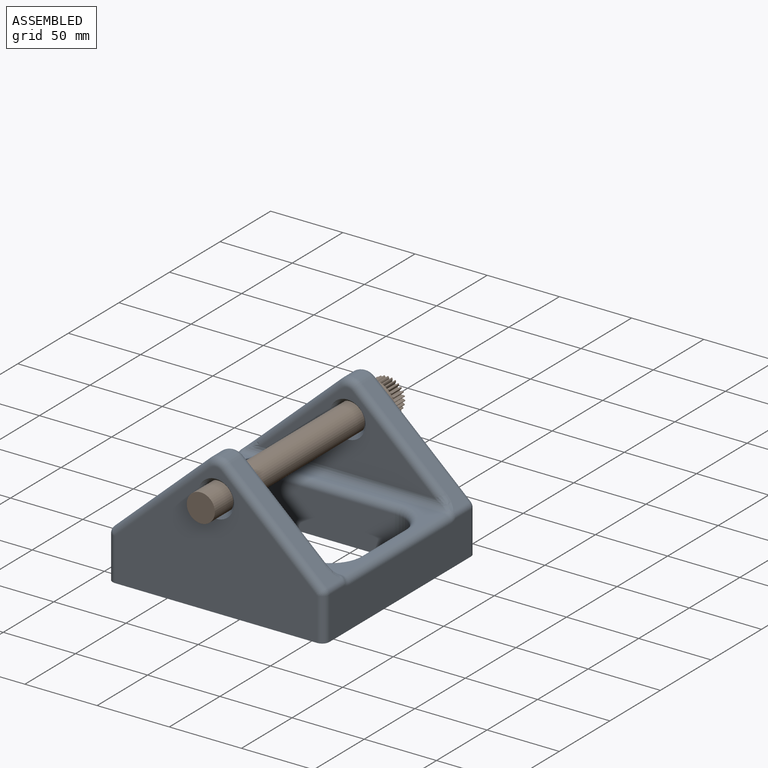
[diagram: assembled view]
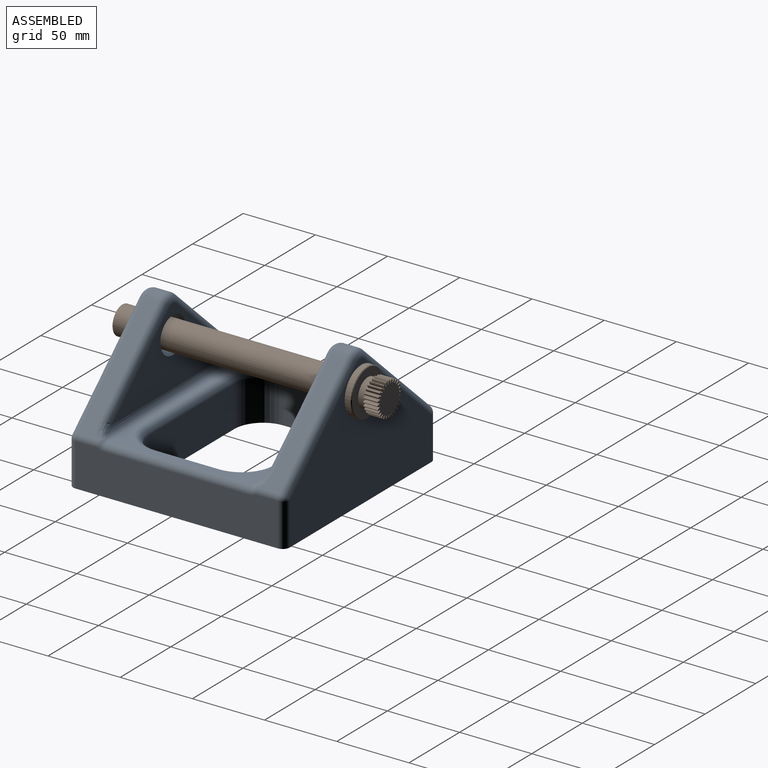
[diagram: assembled view, second angle]
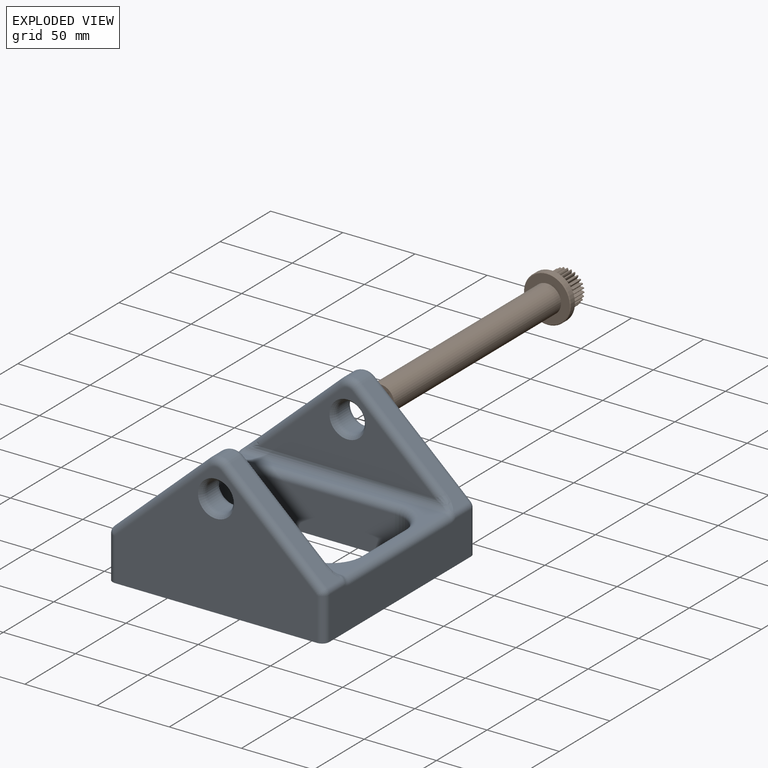
[diagram: exploded view]
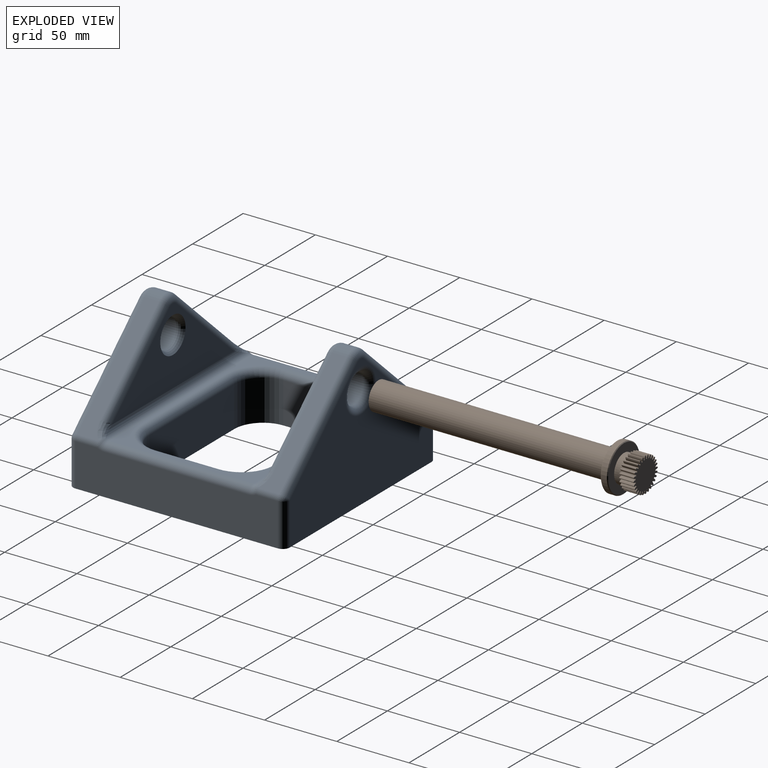
[diagram: exploded view, second angle]
ASSEMBLY  parts=2 mates=2
PART A: 79 faces, bbox 150x150x97.3 mm
  f0: cylinder r=5mm len=15.07mm, axis (0,1,0), area 62.8mm2, adj f2,f12,f26,f40
  f1: cylinder r=5mm len=15.07mm, axis (0,1,0), area 62.8mm2, adj f7,f11,f23,f47
  f2: plane 66.64x60.58mm, normal (-0.67,0,0.74), area 919.6mm2, adj f0,f4,f27,f36,f38
  f3: plane 66.64x60.58mm, normal (0.67,0,0.74), area 919.6mm2, adj f4,f13,f29,f35,f37
  f4: cylinder r=10mm len=13.45mm, axis (0,-1,0), area 147.6mm2, adj f2,f3,f28,f34
  f5: plane 66.64x60.58mm, normal (-0.67,0,0.74), area 919.6mm2, adj f10,f14,f20,f50,f52
  f6: plane 150x150mm, normal (0,0,-1), area 12405.9mm2, adj f8,f9,f11,f12,f18,f24,f25,f31
  f7: plane 66.64x60.58mm, normal (0.67,0,0.74), area 919.6mm2, adj f1,f10,f22,f49,f51
  f8: plane 140x91.49mm, normal (0,-1,0), area 8104.3mm2, adj f6,f25,f27,f28,f29,f31,f58
  f9: plane 140x91.49mm, normal (0,1,0), area 7888.3mm2, adj f6,f18,f20,f21,f22,f24,f62
  f10: cylinder r=10mm len=13.45mm, axis (0,-1,0), area 147.6mm2, adj f5,f7,f21,f53
  f11: plane 140x29.61mm, normal (1,0,0), area 4006.2mm2, adj f1,f6,f13,f24,f31,f41,f43,f45
  f12: plane 140x29.61mm, normal (-1,0,0), area 4006.2mm2, adj f0,f6,f14,f18,f25,f42,f44,f46
  f13: cylinder r=5mm len=15.07mm, axis (0,1,0), area 62.8mm2, adj f3,f11,f30,f39
  f14: cylinder r=5mm len=15.07mm, axis (0,1,0), area 62.8mm2, adj f5,f12,f19,f48
  f15: plane 140x100mm, normal (0,0,1), area 1940.5mm2, adj f32,f33,f43,f44,f71,f72,f73,f74
  f16: plane 120.86x53.18mm, normal (0,1,0), area 2824.7mm2, adj f32,f34,f35,f36,f57
  f17: plane 120.86x53.18mm, normal (0,-1,0), area 2824.7mm2, adj f33,f51,f52,f53,f56
  f18: cylinder r=5mm len=29.61mm, axis (0,0,-1), area 232.5mm2, adj f6,f9,f12,f19
  f19: sphere r=5mm, area 20.8mm2, adj f14,f18,f20
  f20: cylinder r=5mm len=70mm, axis (-0.74,0,-0.67), area 707.3mm2, adj f5,f9,f19,f21
  f21: torus R=5mm, axis (0,-1,0), area 94.8mm2, adj f9,f10,f20,f22
  f22: cylinder r=5mm len=70mm, axis (-0.74,0,0.67), area 707.3mm2, adj f7,f9,f21,f23
  f23: sphere r=5mm, area 20.8mm2, adj f1,f22,f24
  f24: cylinder r=5mm len=29.61mm, axis (0,0,1), area 232.5mm2, adj f6,f9,f11,f23
  f25: cylinder r=5mm len=29.61mm, axis (0,0,-1), area 232.5mm2, adj f6,f8,f12,f26
  f26: sphere r=5mm, area 20.8mm2, adj f0,f25,f27
  f27: cylinder r=5mm len=70mm, axis (0.74,0,0.67), area 707.3mm2, adj f2,f8,f26,f28
  f28: torus R=5mm, axis (0,-1,0), area 94.8mm2, adj f4,f8,f27,f29
  f29: cylinder r=5mm len=70mm, axis (0.74,0,-0.67), area 707.3mm2, adj f3,f8,f28,f30
  f30: sphere r=5mm, area 20.8mm2, adj f13,f29,f31
  f31: cylinder r=5mm len=29.61mm, axis (0,0,1), area 232.5mm2, adj f6,f8,f11,f30
  f32: cylinder r=5mm len=140mm, axis (1,0,0), area 1054.3mm2, adj f15,f16,f37,f38,f41,f42
  f33: cylinder r=5mm len=140mm, axis (-1,0,0), area 1054.3mm2, adj f15,f17,f45,f46,f49,f50
  f34: torus R=5mm, axis (0,1,0), area 94.8mm2, adj f4,f16,f35,f36
  f35: cylinder r=5mm len=60.43mm, axis (-0.74,0,0.67), area 605.7mm2, adj f3,f16,f34,f37
  f36: cylinder r=5mm len=60.43mm, axis (-0.74,0,-0.67), area 605.7mm2, adj f2,f16,f34,f38
  f37: bspline ~12.93x8.7mm, area 73.6mm2, adj f3,f32,f35,f39
  f38: bspline ~12.93x8.7mm, area 73.6mm2, adj f2,f32,f36,f40
  f39: sphere r=5mm, area 7.8mm2, adj f13,f37,f41
  f40: sphere r=5mm, area 7.8mm2, adj f0,f38,f42
  f41: torus R=10mm, axis (1,0,0), area 27.6mm2, adj f11,f32,f39,f43
  f42: torus R=10mm, axis (1,0,0), area 27.6mm2, adj f12,f32,f40,f44
  f43: cylinder r=5mm len=100mm, axis (0,1,0), area 785.4mm2, adj f11,f15,f41,f45
  f44: cylinder r=5mm len=100mm, axis (0,1,0), area 785.4mm2, adj f12,f15,f42,f46
  f45: torus R=10mm, axis (1,0,0), area 27.6mm2, adj f11,f33,f43,f47
  f46: torus R=10mm, axis (1,0,0), area 27.6mm2, adj f12,f33,f44,f48
  f47: sphere r=5mm, area 7.8mm2, adj f1,f45,f49
  f48: sphere r=5mm, area 7.8mm2, adj f14,f46,f50
  f49: bspline ~15.62x11.14mm, area 73.6mm2, adj f7,f33,f47,f51
  f50: bspline ~12.93x8.7mm, area 73.6mm2, adj f5,f33,f48,f52
  f51: cylinder r=5mm len=60.43mm, axis (0.74,0,-0.67), area 605.7mm2, adj f7,f17,f49,f53
  f52: cylinder r=5mm len=60.43mm, axis (0.74,0,0.67), area 605.7mm2, adj f5,f17,f50,f53
  f53: torus R=5mm, axis (0,1,0), area 94.8mm2, adj f10,f17,f51,f52
  f54: cylinder r=10mm len=20mm, axis (0,1,0), area 655.3mm2, adj f61,f62
  f55: cylinder r=10mm len=20mm, axis (0,1,0), area 682.2mm2, adj f59,f60
  f56: cone r=12.5mm half-angle=45deg, axis (0,-1,0), area 110.3mm2, adj f17,f61
  f57: cone r=10mm half-angle=45deg, axis (0,1,0), area 110.3mm2, adj f16,f59
  f58: cone r=12.5mm half-angle=45deg, axis (0,-1,0), area 110.3mm2, adj f8,f60
  f59: torus R=15mm, axis (0,-1,0), area 259mm2, adj f55,f57
  f60: torus R=15mm, axis (0,1,0), area 259mm2, adj f55,f58
  f61: torus R=15mm, axis (0,1,0), area 259mm2, adj f54,f56
  f62: torus R=15mm, axis (0,-1,0), area 583.1mm2, adj f9,f54
  f63: plane 44x28.31mm, normal (-1,0,0), area 1245.5mm2, adj f6,f64,f70,f76
  f64: cylinder r=20mm len=28.31mm, axis (0,0,1), area 889.3mm2, adj f6,f63,f65,f78
  f65: plane 84x28.31mm, normal (0,-1,0), area 2377.7mm2, adj f6,f64,f66,f77
  f66: cylinder r=20mm len=28.31mm, axis (0,0,1), area 889.3mm2, adj f6,f65,f67,f75
  f67: plane 44x28.31mm, normal (1,0,0), area 1245.5mm2, adj f6,f66,f68,f73
  f68: cylinder r=20mm len=28.31mm, axis (0,0,1), area 889.3mm2, adj f6,f67,f69,f71
  f69: plane 84x28.31mm, normal (0,1,0), area 2377.7mm2, adj f6,f68,f70,f72
  f70: cylinder r=20mm len=28.31mm, axis (0,0,1), area 889.3mm2, adj f6,f63,f69,f74
  f71: torus R=25mm, axis (0,0,-1), area 269.2mm2, adj f15,f68,f72,f73
  f72: cylinder r=5mm len=84mm, axis (1,0,0), area 659.7mm2, adj f15,f69,f71,f74
  f73: cylinder r=5mm len=44mm, axis (0,-1,0), area 345.6mm2, adj f15,f67,f71,f75
  f74: torus R=25mm, axis (0,0,-1), area 269.2mm2, adj f15,f70,f72,f76
  f75: torus R=25mm, axis (0,0,-1), area 269.2mm2, adj f15,f66,f73,f77
  f76: cylinder r=5mm len=44mm, axis (0,1,0), area 345.6mm2, adj f15,f63,f74,f78
  f77: cylinder r=5mm len=84mm, axis (-1,0,0), area 659.7mm2, adj f15,f65,f75,f78
  f78: torus R=25mm, axis (0,0,-1), area 269.2mm2, adj f15,f64,f76,f77
PART B: 290 faces, bbox 32.5x185x32.5 mm
  f0: cylinder r=16.25mm len=32.5mm, axis (0,1,0), area 408.4mm2, adj f288,f289
  f1: cylinder r=9.75mm len=165mm, axis (0,1,0), area 10108.1mm2, adj f2,f3
  f2: plane 19.5x19.5mm, normal (0,-1,0), area 298.6mm2, adj f1
  f3: plane 31.5x31.5mm, normal (0,-1,0), area 480.7mm2, adj f1,f289
  f4: plane 2.49x1.86mm, normal (0,-1,0), area 2.8mm2, adj f35,f36,f37,f38,f39,f40,f41,f42
  f5: plane 2.31x1.85mm, normal (0,-1,0), area 2.8mm2, adj f31,f279,f280,f281,f282,f283,f284,f285
  f6: plane 2.47x1.83mm, normal (0,-1,0), area 2.8mm2, adj f233,f270,f271,f272,f273,f274,f275,f276
  f7: plane 2.54x2.05mm, normal (0,-1,0), area 2.8mm2, adj f233,f261,f262,f263,f264,f265,f266,f267
  f8: plane 2.5x2.29mm, normal (0,-1,0), area 2.8mm2, adj f233,f252,f253,f254,f255,f256,f257,f258
  f9: plane 2.48x2.33mm, normal (0,-1,0), area 2.8mm2, adj f233,f243,f244,f245,f246,f247,f248,f249
  f10: plane 2.54x2.09mm, normal (0,-1,0), area 2.8mm2, adj f233,f234,f235,f236,f237,f238,f239,f240
  f11: plane 2.49x1.86mm, normal (0,-1,0), area 2.8mm2, adj f224,f225,f226,f227,f228,f229,f230,f231
  f12: plane 2.31x1.85mm, normal (0,-1,0), area 2.8mm2, adj f215,f216,f217,f218,f219,f220,f221,f222
  f13: plane 2.47x1.83mm, normal (0,-1,0), area 2.8mm2, adj f206,f207,f208,f209,f210,f211,f212,f213
  f14: plane 2.54x2.05mm, normal (0,-1,0), area 2.8mm2, adj f197,f198,f199,f200,f201,f202,f203,f204
  f15: plane 2.5x2.29mm, normal (0,-1,0), area 2.8mm2, adj f188,f189,f190,f191,f192,f193,f194,f195
  f16: plane 2.48x2.33mm, normal (0,-1,0), area 2.8mm2, adj f179,f180,f181,f182,f183,f184,f185,f186
  f17: plane 2.54x2.09mm, normal (0,-1,0), area 2.8mm2, adj f170,f171,f172,f173,f174,f175,f176,f177
  f18: plane 2.49x1.86mm, normal (0,-1,0), area 2.8mm2, adj f161,f162,f163,f164,f165,f166,f167,f168
  f19: plane 2.31x1.85mm, normal (0,-1,0), area 2.8mm2, adj f152,f153,f154,f155,f156,f157,f158,f159
  f20: plane 2.47x1.83mm, normal (0,-1,0), area 2.8mm2, adj f143,f144,f145,f146,f147,f148,f149,f150
  f21: plane 2.54x2.05mm, normal (0,-1,0), area 2.8mm2, adj f134,f135,f136,f137,f138,f139,f140,f141
  f22: plane 2.5x2.29mm, normal (0,-1,0), area 2.8mm2, adj f125,f126,f127,f128,f129,f130,f131,f132
  f23: plane 2.48x2.33mm, normal (0,-1,0), area 2.8mm2, adj f116,f117,f118,f119,f120,f121,f122,f123
  f24: plane 2.54x2.09mm, normal (0,-1,0), area 2.8mm2, adj f107,f108,f109,f110,f111,f112,f113,f114
  f25: plane 2.49x1.86mm, normal (0,-1,0), area 2.8mm2, adj f98,f99,f100,f101,f102,f103,f104,f105
  f26: plane 2.31x1.85mm, normal (0,-1,0), area 2.8mm2, adj f89,f90,f91,f92,f93,f94,f95,f96
  f27: plane 2.47x1.83mm, normal (0,-1,0), area 2.8mm2, adj f80,f81,f82,f83,f84,f85,f86,f87
  f28: plane 2.54x2.05mm, normal (0,-1,0), area 2.8mm2, adj f71,f72,f73,f74,f75,f76,f77,f78
  f29: plane 2.5x2.29mm, normal (0,-1,0), area 2.8mm2, adj f62,f63,f64,f65,f66,f67,f68,f69
  f30: plane 2.48x2.33mm, normal (0,-1,0), area 2.8mm2, adj f53,f54,f55,f56,f57,f58,f59,f60
  f31: extruded ~5x1.85mm, area 9.2mm2, adj f5,f32,f233
  f32: plane 31.5x31.5mm, normal (0,1,0), area 480.7mm2, adj f31,f233,f288
  f33: plane 2.54x2.09mm, normal (0,-1,0), area 2.8mm2, adj f44,f45,f46,f47,f48,f49,f50,f51
  f34: plane 24x24mm, normal (0,1,0), area 376.6mm2, adj f35,f36,f37,f38,f39,f40,f41,f42
  f35: plane 10x0.5mm, normal (-0.17,0,-0.99), area 5mm2, adj f4,f34,f36,f43
  f36: cylinder r=2.5mm len=10mm, axis (0,-1,0), area 15.9mm2, adj f4,f34,f35,f37
  f37: cylinder r=0.1mm len=10mm, axis (0,-1,0), area 0.9mm2, adj f4,f34,f36,f38
  f38: plane 10x0.31mm, normal (-0.97,0,0.24), area 3.2mm2, adj f4,f34,f37,f39
  f39: cylinder r=0.1mm len=10mm, axis (0,-1,0), area 0.9mm2, adj f4,f34,f38,f40
  f40: cylinder r=2.5mm len=10mm, axis (0,-1,0), area 15.9mm2, adj f4,f34,f39,f41
  f41: plane 10x0.48mm, normal (0.31,0,0.95), area 5mm2, adj f4,f34,f40,f42
  f42: cylinder r=0.25mm len=10mm, axis (0,-1,0), area 3.9mm2, adj f4,f34,f41,f233
  f43: cylinder r=0.25mm len=10mm, axis (0,-1,0), area 3.9mm2, adj f4,f34,f35,f233
  f44: plane 10x0.46mm, normal (-0.39,0,-0.92), area 5mm2, adj f33,f34,f45,f51
  f45: cylinder r=2.5mm len=10mm, axis (0,-1,0), area 15.9mm2, adj f33,f34,f44,f46
  f46: cylinder r=0.1mm len=10mm, axis (0,-1,0), area 0.9mm2, adj f33,f34,f45,f47
  f47: plane 10x0.29mm, normal (-0.89,0,0.45), area 3.2mm2, adj f33,f34,f46,f48
  f48: cylinder r=0.1mm len=10mm, axis (0,-1,0), area 0.9mm2, adj f33,f34,f47,f49
  f49: cylinder r=2.5mm len=10mm, axis (0,-1,0), area 15.9mm2, adj f33,f34,f48,f50
  f50: plane 10x0.43mm, normal (0.51,0,0.86), area 5mm2, adj f33,f34,f49,f52
  f51: cylinder r=0.25mm len=10mm, axis (0,-1,0), area 3.9mm2, adj f33,f34,f44,f233
  f52: cylinder r=0.25mm len=10mm, axis (0,-1,0), area 3.9mm2, adj f33,f34,f50,f233
  f53: plane 10x0.41mm, normal (-0.58,0,-0.81), area 5mm2, adj f30,f34,f54,f60
  f54: cylinder r=2.5mm len=10mm, axis (0,-1,0), area 15.9mm2, adj f30,f34,f53,f55
  f55: cylinder r=0.1mm len=10mm, axis (0,-1,0), area 0.9mm2, adj f30,f34,f54,f56
  f56: plane 10x0.25mm, normal (-0.77,0,0.64), area 3.2mm2, adj f30,f34,f55,f57
  f57: cylinder r=0.1mm len=10mm, axis (0,-1,0), area 0.9mm2, adj f30,f34,f56,f58
  f58: cylinder r=2.5mm len=10mm, axis (0,-1,0), area 15.9mm2, adj f30,f34,f57,f59
  f59: plane 10x0.36mm, normal (0.69,0,0.72), area 5mm2, adj f30,f34,f58,f61
  f60: cylinder r=0.25mm len=10mm, axis (0,-1,0), area 3.9mm2, adj f30,f34,f53,f233
  f61: cylinder r=0.25mm len=10mm, axis (0,-1,0), area 3.9mm2, adj f30,f34,f59,f233
  f62: plane 10x0.38mm, normal (-0.75,0,-0.66), area 5mm2, adj f29,f34,f63,f69
  f63: cylinder r=2.5mm len=10mm, axis (0,-1,0), area 15.9mm2, adj f29,f34,f62,f64
  f64: cylinder r=0.1mm len=10mm, axis (0,-1,0), area 0.9mm2, adj f29,f34,f63,f65
  f65: plane 10x0.25mm, normal (-0.61,0,0.79), area 3.2mm2, adj f29,f34,f64,f66
  f66: cylinder r=0.1mm len=10mm, axis (0,-1,0), area 0.9mm2, adj f29,f34,f65,f67
  f67: cylinder r=2.5mm len=10mm, axis (0,-1,0), area 15.9mm2, adj f29,f34,f66,f68
  f68: plane 10x0.42mm, normal (0.83,0,0.55), area 5mm2, adj f29,f34,f67,f70
  f69: cylinder r=0.25mm len=10mm, axis (0,-1,0), area 3.9mm2, adj f29,f34,f62,f233
  f70: cylinder r=0.25mm len=10mm, axis (0,-1,0), area 3.9mm2, adj f29,f34,f68,f233
  f71: plane 10x0.44mm, normal (-0.88,0,-0.48), area 5mm2, adj f28,f34,f72,f78
  f72: cylinder r=2.5mm len=10mm, axis (0,-1,0), area 15.9mm2, adj f28,f34,f71,f73
  f73: cylinder r=0.1mm len=10mm, axis (0,-1,0), area 0.9mm2, adj f28,f34,f72,f74
  f74: plane 10x0.29mm, normal (-0.42,0,0.91), area 3.2mm2, adj f28,f34,f73,f75
  f75: cylinder r=0.1mm len=10mm, axis (0,-1,0), area 0.9mm2, adj f28,f34,f74,f76
  f76: cylinder r=2.5mm len=10mm, axis (0,-1,0), area 15.9mm2, adj f28,f34,f75,f77
  f77: plane 10x0.47mm, normal (0.94,0,0.35), area 5mm2, adj f28,f34,f76,f79
  f78: cylinder r=0.25mm len=10mm, axis (0,-1,0), area 3.9mm2, adj f28,f34,f71,f233
  f79: cylinder r=0.25mm len=10mm, axis (0,-1,0), area 3.9mm2, adj f28,f34,f77,f233
  f80: plane 10x0.48mm, normal (-0.96,0,-0.27), area 5mm2, adj f27,f34,f81,f87
  f81: cylinder r=2.5mm len=10mm, axis (0,-1,0), area 15.9mm2, adj f27,f34,f80,f82
  f82: cylinder r=0.1mm len=10mm, axis (0,-1,0), area 0.9mm2, adj f27,f34,f81,f83
  f83: plane 10x0.31mm, normal (-0.21,0,0.98), area 3.2mm2, adj f27,f34,f82,f84
  f84: cylinder r=0.1mm len=10mm, axis (0,-1,0), area 0.9mm2, adj f27,f34,f83,f85
  f85: cylinder r=2.5mm len=10mm, axis (0,-1,0), area 15.9mm2, adj f27,f34,f84,f86
  f86: plane 10x0.5mm, normal (0.99,0,0.14), area 5mm2, adj f27,f34,f85,f88
  f87: cylinder r=0.25mm len=10mm, axis (0,-1,0), area 3.9mm2, adj f27,f34,f80,f233
  f88: cylinder r=0.25mm len=10mm, axis (0,-1,0), area 3.9mm2, adj f27,f34,f86,f233
  f89: plane 10x0.5mm, normal (-1,0,-0.05), area 5mm2, adj f26,f34,f90,f96
  f90: cylinder r=2.5mm len=10mm, axis (0,-1,0), area 15.9mm2, adj f26,f34,f89,f91
  f91: cylinder r=0.1mm len=10mm, axis (0,-1,0), area 0.9mm2, adj f26,f34,f90,f92
  f92: plane 10x0.32mm, normal (0.02,0,1), area 3.2mm2, adj f26,f34,f91,f93
  f93: cylinder r=0.1mm len=10mm, axis (0,-1,0), area 0.9mm2, adj f26,f34,f92,f94
  f94: cylinder r=2.5mm len=10mm, axis (0,-1,0), area 15.9mm2, adj f26,f34,f93,f95
  f95: plane 10x0.5mm, normal (1,0,-0.09), area 5mm2, adj f26,f34,f94,f97
  f96: cylinder r=0.25mm len=10mm, axis (0,-1,0), area 3.9mm2, adj f26,f34,f89,f233
  f97: cylinder r=0.25mm len=10mm, axis (0,-1,0), area 3.9mm2, adj f26,f34,f95,f233
  f98: plane 10x0.5mm, normal (-0.99,0,0.17), area 5mm2, adj f25,f34,f99,f105
  f99: cylinder r=2.5mm len=10mm, axis (0,-1,0), area 15.9mm2, adj f25,f34,f98,f100
  f100: cylinder r=0.1mm len=10mm, axis (0,-1,0), area 0.9mm2, adj f25,f34,f99,f101
  f101: plane 10x0.31mm, normal (0.24,0,0.97), area 3.2mm2, adj f25,f34,f100,f102
  f102: cylinder r=0.1mm len=10mm, axis (0,-1,0), area 0.9mm2, adj f25,f34,f101,f103
  f103: cylinder r=2.5mm len=10mm, axis (0,-1,0), area 15.9mm2, adj f25,f34,f102,f104
  f104: plane 10x0.48mm, normal (0.95,0,-0.31), area 5mm2, adj f25,f34,f103,f106
  f105: cylinder r=0.25mm len=10mm, axis (0,-1,0), area 3.9mm2, adj f25,f34,f98,f233
  f106: cylinder r=0.25mm len=10mm, axis (0,-1,0), area 3.9mm2, adj f25,f34,f104,f233
  f107: plane 10x0.46mm, normal (-0.92,0,0.39), area 5mm2, adj f24,f34,f108,f114
  f108: cylinder r=2.5mm len=10mm, axis (0,-1,0), area 15.9mm2, adj f24,f34,f107,f109
  f109: cylinder r=0.1mm len=10mm, axis (0,-1,0), area 0.9mm2, adj f24,f34,f108,f110
  f110: plane 10x0.29mm, normal (0.45,0,0.89), area 3.2mm2, adj f24,f34,f109,f111
  f111: cylinder r=0.1mm len=10mm, axis (0,-1,0), area 0.9mm2, adj f24,f34,f110,f112
  f112: cylinder r=2.5mm len=10mm, axis (0,-1,0), area 15.9mm2, adj f24,f34,f111,f113
  f113: plane 10x0.43mm, normal (0.86,0,-0.51), area 5mm2, adj f24,f34,f112,f115
  f114: cylinder r=0.25mm len=10mm, axis (0,-1,0), area 3.9mm2, adj f24,f34,f107,f233
  f115: cylinder r=0.25mm len=10mm, axis (0,-1,0), area 3.9mm2, adj f24,f34,f113,f233
  f116: plane 10x0.41mm, normal (-0.81,0,0.58), area 5mm2, adj f23,f34,f117,f123
  f117: cylinder r=2.5mm len=10mm, axis (0,-1,0), area 15.9mm2, adj f23,f34,f116,f118
  f118: cylinder r=0.1mm len=10mm, axis (0,-1,0), area 0.9mm2, adj f23,f34,f117,f119
  f119: plane 10x0.25mm, normal (0.64,0,0.77), area 3.2mm2, adj f23,f34,f118,f120
  f120: cylinder r=0.1mm len=10mm, axis (0,-1,0), area 0.9mm2, adj f23,f34,f119,f121
  f121: cylinder r=2.5mm len=10mm, axis (0,-1,0), area 15.9mm2, adj f23,f34,f120,f122
  f122: plane 10x0.36mm, normal (0.72,0,-0.69), area 5mm2, adj f23,f34,f121,f124
  f123: cylinder r=0.25mm len=10mm, axis (0,-1,0), area 3.9mm2, adj f23,f34,f116,f233
  f124: cylinder r=0.25mm len=10mm, axis (0,-1,0), area 3.9mm2, adj f23,f34,f122,f233
  f125: plane 10x0.38mm, normal (-0.66,0,0.75), area 5mm2, adj f22,f34,f126,f132
  f126: cylinder r=2.5mm len=10mm, axis (0,-1,0), area 15.9mm2, adj f22,f34,f125,f127
  f127: cylinder r=0.1mm len=10mm, axis (0,-1,0), area 0.9mm2, adj f22,f34,f126,f128
  f128: plane 10x0.25mm, normal (0.79,0,0.61), area 3.2mm2, adj f22,f34,f127,f129
  f129: cylinder r=0.1mm len=10mm, axis (0,-1,0), area 0.9mm2, adj f22,f34,f128,f130
  f130: cylinder r=2.5mm len=10mm, axis (0,-1,0), area 15.9mm2, adj f22,f34,f129,f131
  f131: plane 10x0.42mm, normal (0.55,0,-0.83), area 5mm2, adj f22,f34,f130,f133
  f132: cylinder r=0.25mm len=10mm, axis (0,-1,0), area 3.9mm2, adj f22,f34,f125,f233
  f133: cylinder r=0.25mm len=10mm, axis (0,-1,0), area 3.9mm2, adj f22,f34,f131,f233
  f134: plane 10x0.44mm, normal (-0.48,0,0.88), area 5mm2, adj f21,f34,f135,f141
  f135: cylinder r=2.5mm len=10mm, axis (0,-1,0), area 15.9mm2, adj f21,f34,f134,f136
  f136: cylinder r=0.1mm len=10mm, axis (0,-1,0), area 0.9mm2, adj f21,f34,f135,f137
  f137: plane 10x0.29mm, normal (0.91,0,0.42), area 3.2mm2, adj f21,f34,f136,f138
  f138: cylinder r=0.1mm len=10mm, axis (0,-1,0), area 0.9mm2, adj f21,f34,f137,f139
  f139: cylinder r=2.5mm len=10mm, axis (0,-1,0), area 15.9mm2, adj f21,f34,f138,f140
  f140: plane 10x0.47mm, normal (0.35,0,-0.94), area 5mm2, adj f21,f34,f139,f142
  f141: cylinder r=0.25mm len=10mm, axis (0,-1,0), area 3.9mm2, adj f21,f34,f134,f233
  f142: cylinder r=0.25mm len=10mm, axis (0,-1,0), area 3.9mm2, adj f21,f34,f140,f233
  f143: plane 10x0.48mm, normal (-0.27,0,0.96), area 5mm2, adj f20,f34,f144,f150
  f144: cylinder r=2.5mm len=10mm, axis (0,-1,0), area 15.9mm2, adj f20,f34,f143,f145
  f145: cylinder r=0.1mm len=10mm, axis (0,-1,0), area 0.9mm2, adj f20,f34,f144,f146
  f146: plane 10x0.31mm, normal (0.98,0,0.21), area 3.2mm2, adj f20,f34,f145,f147
  f147: cylinder r=0.1mm len=10mm, axis (0,-1,0), area 0.9mm2, adj f20,f34,f146,f148
  f148: cylinder r=2.5mm len=10mm, axis (0,-1,0), area 15.9mm2, adj f20,f34,f147,f149
  f149: plane 10x0.5mm, normal (0.14,0,-0.99), area 5mm2, adj f20,f34,f148,f151
  f150: cylinder r=0.25mm len=10mm, axis (0,-1,0), area 3.9mm2, adj f20,f34,f143,f233
  f151: cylinder r=0.25mm len=10mm, axis (0,-1,0), area 3.9mm2, adj f20,f34,f149,f233
  f152: plane 10x0.5mm, normal (-0.05,0,1), area 5mm2, adj f19,f34,f153,f159
  f153: cylinder r=2.5mm len=10mm, axis (0,-1,0), area 15.9mm2, adj f19,f34,f152,f154
  f154: cylinder r=0.1mm len=10mm, axis (0,-1,0), area 0.9mm2, adj f19,f34,f153,f155
  f155: plane 10x0.32mm, normal (1,0,-0.02), area 3.2mm2, adj f19,f34,f154,f156
  f156: cylinder r=0.1mm len=10mm, axis (0,-1,0), area 0.9mm2, adj f19,f34,f155,f157
  f157: cylinder r=2.5mm len=10mm, axis (0,-1,0), area 15.9mm2, adj f19,f34,f156,f158
  f158: plane 10x0.5mm, normal (-0.09,0,-1), area 5mm2, adj f19,f34,f157,f160
  f159: cylinder r=0.25mm len=10mm, axis (0,-1,0), area 3.9mm2, adj f19,f34,f152,f233
  f160: cylinder r=0.25mm len=10mm, axis (0,-1,0), area 3.9mm2, adj f19,f34,f158,f233
  f161: plane 10x0.5mm, normal (0.17,0,0.99), area 5mm2, adj f18,f34,f162,f168
  f162: cylinder r=2.5mm len=10mm, axis (0,-1,0), area 15.9mm2, adj f18,f34,f161,f163
  f163: cylinder r=0.1mm len=10mm, axis (0,-1,0), area 0.9mm2, adj f18,f34,f162,f164
  f164: plane 10x0.31mm, normal (0.97,0,-0.24), area 3.2mm2, adj f18,f34,f163,f165
  f165: cylinder r=0.1mm len=10mm, axis (0,-1,0), area 0.9mm2, adj f18,f34,f164,f166
  f166: cylinder r=2.5mm len=10mm, axis (0,-1,0), area 15.9mm2, adj f18,f34,f165,f167
  f167: plane 10x0.48mm, normal (-0.31,0,-0.95), area 5mm2, adj f18,f34,f166,f169
  f168: cylinder r=0.25mm len=10mm, axis (0,-1,0), area 3.9mm2, adj f18,f34,f161,f233
  f169: cylinder r=0.25mm len=10mm, axis (0,-1,0), area 3.9mm2, adj f18,f34,f167,f233
  f170: plane 10x0.46mm, normal (0.39,0,0.92), area 5mm2, adj f17,f34,f171,f177
  f171: cylinder r=2.5mm len=10mm, axis (0,-1,0), area 15.9mm2, adj f17,f34,f170,f172
  f172: cylinder r=0.1mm len=10mm, axis (0,-1,0), area 0.9mm2, adj f17,f34,f171,f173
  f173: plane 10x0.29mm, normal (0.89,0,-0.45), area 3.2mm2, adj f17,f34,f172,f174
  f174: cylinder r=0.1mm len=10mm, axis (0,-1,0), area 0.9mm2, adj f17,f34,f173,f175
  f175: cylinder r=2.5mm len=10mm, axis (0,-1,0), area 15.9mm2, adj f17,f34,f174,f176
  f176: plane 10x0.43mm, normal (-0.51,0,-0.86), area 5mm2, adj f17,f34,f175,f178
  f177: cylinder r=0.25mm len=10mm, axis (0,-1,0), area 3.9mm2, adj f17,f34,f170,f233
  f178: cylinder r=0.25mm len=10mm, axis (0,-1,0), area 3.9mm2, adj f17,f34,f176,f233
  f179: plane 10x0.41mm, normal (0.58,0,0.81), area 5mm2, adj f16,f34,f180,f186
  f180: cylinder r=2.5mm len=10mm, axis (0,-1,0), area 15.9mm2, adj f16,f34,f179,f181
  f181: cylinder r=0.1mm len=10mm, axis (0,-1,0), area 0.9mm2, adj f16,f34,f180,f182
  f182: plane 10x0.25mm, normal (0.77,0,-0.64), area 3.2mm2, adj f16,f34,f181,f183
  f183: cylinder r=0.1mm len=10mm, axis (0,-1,0), area 0.9mm2, adj f16,f34,f182,f184
  f184: cylinder r=2.5mm len=10mm, axis (0,-1,0), area 15.9mm2, adj f16,f34,f183,f185
  f185: plane 10x0.36mm, normal (-0.69,0,-0.72), area 5mm2, adj f16,f34,f184,f187
  f186: cylinder r=0.25mm len=10mm, axis (0,-1,0), area 3.9mm2, adj f16,f34,f179,f233
  f187: cylinder r=0.25mm len=10mm, axis (0,-1,0), area 3.9mm2, adj f16,f34,f185,f233
  f188: plane 10x0.38mm, normal (0.75,0,0.66), area 5mm2, adj f15,f34,f189,f195
  f189: cylinder r=2.5mm len=10mm, axis (0,-1,0), area 15.9mm2, adj f15,f34,f188,f190
  f190: cylinder r=0.1mm len=10mm, axis (0,-1,0), area 0.9mm2, adj f15,f34,f189,f191
  f191: plane 10x0.25mm, normal (0.61,0,-0.79), area 3.2mm2, adj f15,f34,f190,f192
  f192: cylinder r=0.1mm len=10mm, axis (0,-1,0), area 0.9mm2, adj f15,f34,f191,f193
  f193: cylinder r=2.5mm len=10mm, axis (0,-1,0), area 15.9mm2, adj f15,f34,f192,f194
  f194: plane 10x0.42mm, normal (-0.83,0,-0.55), area 5mm2, adj f15,f34,f193,f196
  f195: cylinder r=0.25mm len=10mm, axis (0,-1,0), area 3.9mm2, adj f15,f34,f188,f233
  f196: cylinder r=0.25mm len=10mm, axis (0,-1,0), area 3.9mm2, adj f15,f34,f194,f233
  f197: plane 10x0.44mm, normal (0.88,0,0.48), area 5mm2, adj f14,f34,f198,f204
  f198: cylinder r=2.5mm len=10mm, axis (0,-1,0), area 15.9mm2, adj f14,f34,f197,f199
  f199: cylinder r=0.1mm len=10mm, axis (0,-1,0), area 0.9mm2, adj f14,f34,f198,f200
  f200: plane 10x0.29mm, normal (0.42,0,-0.91), area 3.2mm2, adj f14,f34,f199,f201
  f201: cylinder r=0.1mm len=10mm, axis (0,-1,0), area 0.9mm2, adj f14,f34,f200,f202
  f202: cylinder r=2.5mm len=10mm, axis (0,-1,0), area 15.9mm2, adj f14,f34,f201,f203
  f203: plane 10x0.47mm, normal (-0.94,0,-0.35), area 5mm2, adj f14,f34,f202,f205
  f204: cylinder r=0.25mm len=10mm, axis (0,-1,0), area 3.9mm2, adj f14,f34,f197,f233
  f205: cylinder r=0.25mm len=10mm, axis (0,-1,0), area 3.9mm2, adj f14,f34,f203,f233
  f206: plane 10x0.48mm, normal (0.96,0,0.27), area 5mm2, adj f13,f34,f207,f213
  f207: cylinder r=2.5mm len=10mm, axis (0,-1,0), area 15.9mm2, adj f13,f34,f206,f208
  f208: cylinder r=0.1mm len=10mm, axis (0,-1,0), area 0.9mm2, adj f13,f34,f207,f209
  f209: plane 10x0.31mm, normal (0.21,0,-0.98), area 3.2mm2, adj f13,f34,f208,f210
  f210: cylinder r=0.1mm len=10mm, axis (0,-1,0), area 0.9mm2, adj f13,f34,f209,f211
  f211: cylinder r=2.5mm len=10mm, axis (0,-1,0), area 15.9mm2, adj f13,f34,f210,f212
  f212: plane 10x0.5mm, normal (-0.99,0,-0.14), area 5mm2, adj f13,f34,f211,f214
  f213: cylinder r=0.25mm len=10mm, axis (0,-1,0), area 3.9mm2, adj f13,f34,f206,f233
  f214: cylinder r=0.25mm len=10mm, axis (0,-1,0), area 3.9mm2, adj f13,f34,f212,f233
  f215: plane 10x0.5mm, normal (1,0,0.05), area 5mm2, adj f12,f34,f216,f222
  f216: cylinder r=2.5mm len=10mm, axis (0,-1,0), area 15.9mm2, adj f12,f34,f215,f217
  f217: cylinder r=0.1mm len=10mm, axis (0,-1,0), area 0.9mm2, adj f12,f34,f216,f218
  f218: plane 10x0.32mm, normal (-0.02,0,-1), area 3.2mm2, adj f12,f34,f217,f219
  f219: cylinder r=0.1mm len=10mm, axis (0,-1,0), area 0.9mm2, adj f12,f34,f218,f220
  f220: cylinder r=2.5mm len=10mm, axis (0,-1,0), area 15.9mm2, adj f12,f34,f219,f221
  f221: plane 10x0.5mm, normal (-1,0,0.09), area 5mm2, adj f12,f34,f220,f223
  f222: cylinder r=0.25mm len=10mm, axis (0,-1,0), area 3.9mm2, adj f12,f34,f215,f233
  f223: cylinder r=0.25mm len=10mm, axis (0,-1,0), area 3.9mm2, adj f12,f34,f221,f233
  f224: plane 10x0.5mm, normal (0.99,0,-0.17), area 5mm2, adj f11,f34,f225,f231
  f225: cylinder r=2.5mm len=10mm, axis (0,-1,0), area 15.9mm2, adj f11,f34,f224,f226
  f226: cylinder r=0.1mm len=10mm, axis (0,-1,0), area 0.9mm2, adj f11,f34,f225,f227
  f227: plane 10x0.31mm, normal (-0.24,0,-0.97), area 3.2mm2, adj f11,f34,f226,f228
  f228: cylinder r=0.1mm len=10mm, axis (0,-1,0), area 0.9mm2, adj f11,f34,f227,f229
  f229: cylinder r=2.5mm len=10mm, axis (0,-1,0), area 15.9mm2, adj f11,f34,f228,f230
  f230: plane 10x0.48mm, normal (-0.95,0,0.31), area 5mm2, adj f11,f34,f229,f232
  f231: cylinder r=0.25mm len=10mm, axis (0,-1,0), area 3.9mm2, adj f11,f34,f224,f233
  f232: cylinder r=0.25mm len=10mm, axis (0,-1,0), area 3.9mm2, adj f11,f34,f230,f233
  f233: cylinder r=9.75mm len=19.5mm, axis (0,1,0), area 392mm2, adj f4,f6,f7,f8,f9,f10,f11,f12
  f234: plane 10x0.46mm, normal (0.92,0,-0.39), area 5mm2, adj f10,f34,f235,f241
  f235: cylinder r=2.5mm len=10mm, axis (0,-1,0), area 15.9mm2, adj f10,f34,f234,f236
  f236: cylinder r=0.1mm len=10mm, axis (0,-1,0), area 0.9mm2, adj f10,f34,f235,f237
  f237: plane 10x0.29mm, normal (-0.45,0,-0.89), area 3.2mm2, adj f10,f34,f236,f238
  f238: cylinder r=0.1mm len=10mm, axis (0,-1,0), area 0.9mm2, adj f10,f34,f237,f239
  f239: cylinder r=2.5mm len=10mm, axis (0,-1,0), area 15.9mm2, adj f10,f34,f238,f240
  f240: plane 10x0.43mm, normal (-0.86,0,0.51), area 5mm2, adj f10,f34,f239,f242
  f241: cylinder r=0.25mm len=10mm, axis (0,-1,0), area 3.9mm2, adj f10,f34,f233,f234
  f242: cylinder r=0.25mm len=10mm, axis (0,-1,0), area 3.9mm2, adj f10,f34,f233,f240
  f243: plane 10x0.41mm, normal (0.81,0,-0.58), area 5mm2, adj f9,f34,f244,f250
  f244: cylinder r=2.5mm len=10mm, axis (0,-1,0), area 15.9mm2, adj f9,f34,f243,f245
  f245: cylinder r=0.1mm len=10mm, axis (0,-1,0), area 0.9mm2, adj f9,f34,f244,f246
  f246: plane 10x0.25mm, normal (-0.64,0,-0.77), area 3.2mm2, adj f9,f34,f245,f247
  f247: cylinder r=0.1mm len=10mm, axis (0,-1,0), area 0.9mm2, adj f9,f34,f246,f248
  f248: cylinder r=2.5mm len=10mm, axis (0,-1,0), area 15.9mm2, adj f9,f34,f247,f249
  f249: plane 10x0.36mm, normal (-0.72,0,0.69), area 5mm2, adj f9,f34,f248,f251
  f250: cylinder r=0.25mm len=10mm, axis (0,-1,0), area 3.9mm2, adj f9,f34,f233,f243
  f251: cylinder r=0.25mm len=10mm, axis (0,-1,0), area 3.9mm2, adj f9,f34,f233,f249
  f252: plane 10x0.38mm, normal (0.66,0,-0.75), area 5mm2, adj f8,f34,f253,f259
  f253: cylinder r=2.5mm len=10mm, axis (0,-1,0), area 15.9mm2, adj f8,f34,f252,f254
  f254: cylinder r=0.1mm len=10mm, axis (0,-1,0), area 0.9mm2, adj f8,f34,f253,f255
  f255: plane 10x0.25mm, normal (-0.79,0,-0.61), area 3.2mm2, adj f8,f34,f254,f256
  f256: cylinder r=0.1mm len=10mm, axis (0,-1,0), area 0.9mm2, adj f8,f34,f255,f257
  f257: cylinder r=2.5mm len=10mm, axis (0,-1,0), area 15.9mm2, adj f8,f34,f256,f258
  f258: plane 10x0.42mm, normal (-0.55,0,0.83), area 5mm2, adj f8,f34,f257,f260
  f259: cylinder r=0.25mm len=10mm, axis (0,-1,0), area 3.9mm2, adj f8,f34,f233,f252
  f260: cylinder r=0.25mm len=10mm, axis (0,-1,0), area 3.9mm2, adj f8,f34,f233,f258
  f261: plane 10x0.44mm, normal (0.48,0,-0.88), area 5mm2, adj f7,f34,f262,f268
  f262: cylinder r=2.5mm len=10mm, axis (0,-1,0), area 15.9mm2, adj f7,f34,f261,f263
  f263: cylinder r=0.1mm len=10mm, axis (0,-1,0), area 0.9mm2, adj f7,f34,f262,f264
  f264: plane 10x0.29mm, normal (-0.91,0,-0.42), area 3.2mm2, adj f7,f34,f263,f265
  f265: cylinder r=0.1mm len=10mm, axis (0,-1,0), area 0.9mm2, adj f7,f34,f264,f266
  f266: cylinder r=2.5mm len=10mm, axis (0,-1,0), area 15.9mm2, adj f7,f34,f265,f267
  f267: plane 10x0.47mm, normal (-0.35,0,0.94), area 5mm2, adj f7,f34,f266,f269
  f268: cylinder r=0.25mm len=10mm, axis (0,-1,0), area 3.9mm2, adj f7,f34,f233,f261
  f269: cylinder r=0.25mm len=10mm, axis (0,-1,0), area 3.9mm2, adj f7,f34,f233,f267
  f270: plane 10x0.48mm, normal (0.27,0,-0.96), area 5mm2, adj f6,f34,f271,f277
  f271: cylinder r=2.5mm len=10mm, axis (0,-1,0), area 15.9mm2, adj f6,f34,f270,f272
  f272: cylinder r=0.1mm len=10mm, axis (0,-1,0), area 0.9mm2, adj f6,f34,f271,f273
  f273: plane 10x0.31mm, normal (-0.98,0,-0.21), area 3.2mm2, adj f6,f34,f272,f274
  f274: cylinder r=0.1mm len=10mm, axis (0,-1,0), area 0.9mm2, adj f6,f34,f273,f275
  f275: cylinder r=2.5mm len=10mm, axis (0,-1,0), area 15.9mm2, adj f6,f34,f274,f276
  f276: plane 10x0.5mm, normal (-0.14,0,0.99), area 5mm2, adj f6,f34,f275,f278
  f277: cylinder r=0.25mm len=10mm, axis (0,-1,0), area 3.9mm2, adj f6,f34,f233,f270
  f278: cylinder r=0.25mm len=10mm, axis (0,-1,0), area 3.9mm2, adj f6,f34,f233,f276
  f279: plane 10x0.5mm, normal (0.05,0,-1), area 5mm2, adj f5,f34,f280,f286
  f280: cylinder r=2.5mm len=10mm, axis (0,-1,0), area 15.9mm2, adj f5,f34,f279,f281
  f281: cylinder r=0.1mm len=10mm, axis (0,-1,0), area 0.9mm2, adj f5,f34,f280,f282
  f282: plane 10x0.32mm, normal (-1,0,0.02), area 3.2mm2, adj f5,f34,f281,f283
  f283: cylinder r=0.1mm len=10mm, axis (0,-1,0), area 0.9mm2, adj f5,f34,f282,f284
  f284: cylinder r=2.5mm len=10mm, axis (0,-1,0), area 15.9mm2, adj f5,f34,f283,f285
  f285: plane 10x0.5mm, normal (0.09,0,1), area 5mm2, adj f5,f34,f284,f287
  f286: cylinder r=0.25mm len=10mm, axis (0,-1,0), area 3.9mm2, adj f5,f34,f233,f279
  f287: cylinder r=0.25mm len=10mm, axis (0,-1,0), area 3.9mm2, adj f5,f34,f233,f285
  f288: cone r=16.25mm half-angle=45deg, axis (0,-1,0), area 71.1mm2, adj f0,f32
  f289: cone r=15.75mm half-angle=45deg, axis (0,1,0), area 71.1mm2, adj f0,f3
PLACE A t=(-11.23,33.63,-4.16)mm
PLACE B t=(-11.23,43.63,67.32)mm
MATE cylindrical A.f54 <-> B.f1  axis (0,1,0) through (-11.23,23.42,67.32)mm
MATE planar A.f9 <-> B.f0  axis (0,1,0) through (-11.23,33.63,25.86)mm
